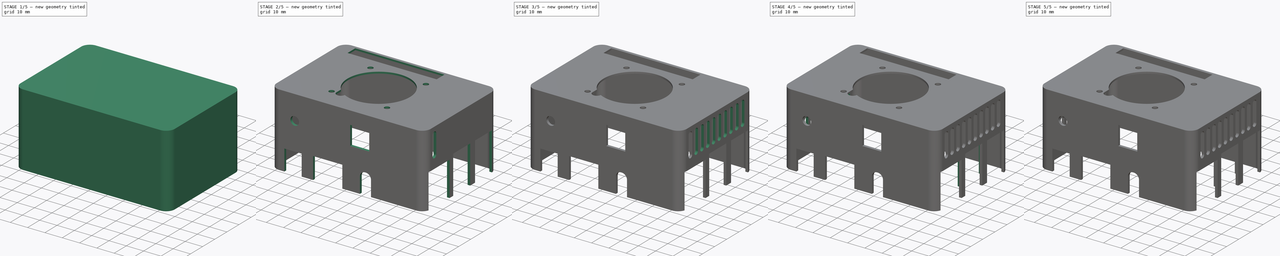
[diagram: build sequence overview — one tinted view per stage of 5, left to right]
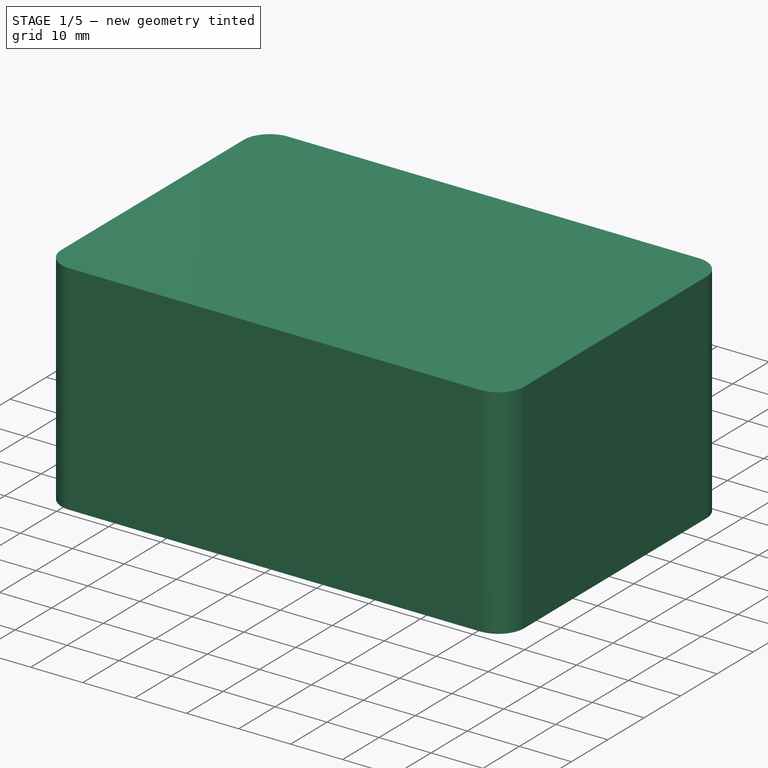
[diagram: stage 1 of 5 — iso view after this stage's code; geometry added in this stage tinted green]
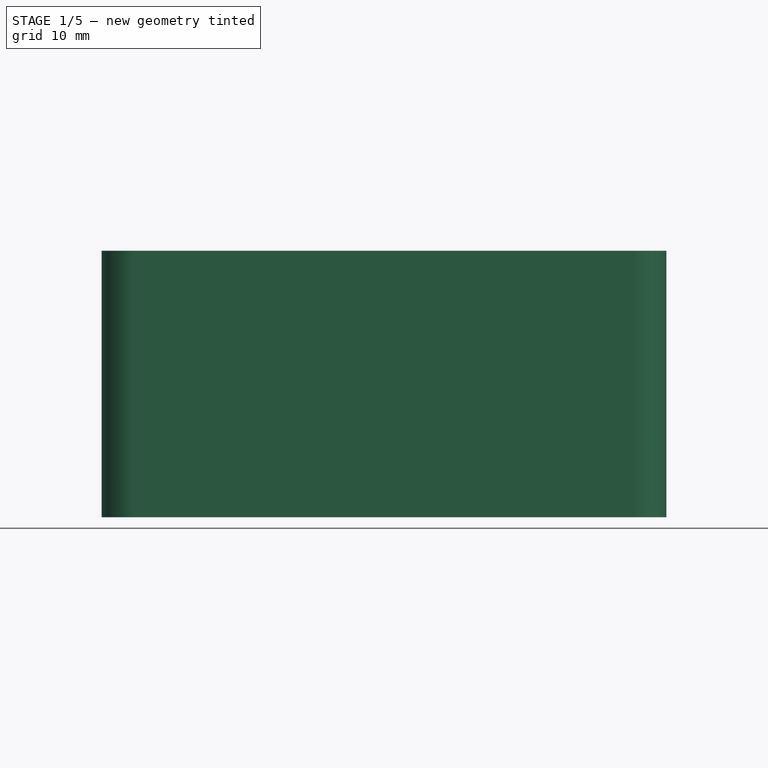
[diagram: stage 1 of 5 — front view after this stage's code; geometry added in this stage tinted green]
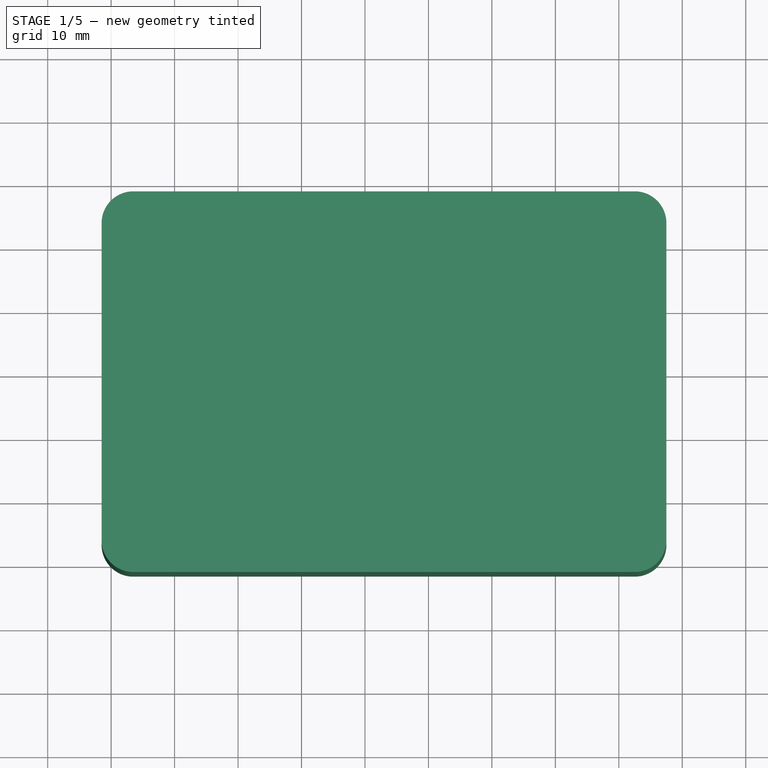
[diagram: stage 1 of 5 — top view after this stage's code; geometry added in this stage tinted green]
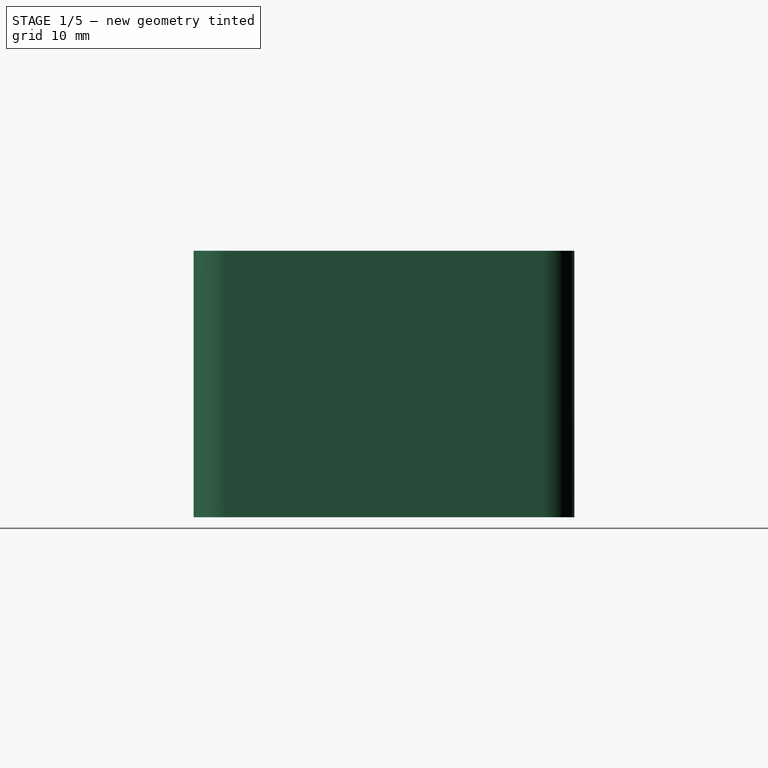
[diagram: stage 1 of 5 — right view after this stage's code; geometry added in this stage tinted green]
FCSTD DOCUMENT  (FreeCAD 0.19R17360 (Git))
Label: nanopiM4_SATA_cover
Comment: <email>\n
License: CreativeCommons Attribution-NonCommercial-ShareAlike
LicenseURL: http://creativecommons.org/licenses/by-nc-sa/4.0/
objects: Sketcher::SketchObject×11, PartDesign::Pocket×8, Part::Feature×5, PartDesign::Pad×3, PartDesign::LinearPattern×3, Part::Part2DObjectPython×2, PartDesign::Chamfer×2, PartDesign::Fillet×1, App::DocumentObjectGroup×1, PartDesign::Body×1
note: 47 computed .brp shape members not serialized (recipe doc carries the construction recipe); baked Part::Feature solids carry a one-line shape summary decoded from their .brp

FEATURE [Part::Feature] BG_OUTLINE
  Placement = pos=(0,0,1) rot=(0,0,1;0rad)
  shape: bbox 84.66 x 55.77 x 2e-07 mm, 0 faces, 0 solids (baked)
FEATURE [Part::Feature] PG_SILKSCREEN_TOP
  Placement = pos=(0,0,52) rot=(0,0,1;0rad)
  shape: bbox 82.86 x 58.79 x 2e-07 mm, 0 faces, 0 solids (baked)
FEATURE [Part::Feature] PG_SOLDERMASK_TOP
  shape: bbox 63.74 x 54.78 x 2e-07 mm, 0 faces, 0 solids (baked)
FEATURE [Sketcher::SketchObject] Sketch  label="Sketch-outer_shape"
  MapMode = 5
  Support = -> [XY_Plane]
  sketch-geometry (4):
    g0: LineSegment StartX=-1.5 StartY=-1.5 StartZ=0 EndX=87.5 EndY=-1.5 EndZ=0
    g1: LineSegment StartX=87.5 StartY=-1.5 StartZ=0 EndX=87.5 EndY=58.5 EndZ=0
    g2: LineSegment StartX=87.5 StartY=58.5 StartZ=0 EndX=-1.5 EndY=58.5 EndZ=0
    g3: LineSegment StartX=-1.5 StartY=58.5 StartZ=0 EndX=-1.5 EndY=-1.5 EndZ=0
  constraints (12):
    c: Coincident(g0,g1)
    c: Coincident(g1,g2)
    c: Coincident(g2,g3)
    c: Coincident(g3,g0)
    c: Horizontal(g0)
    c: Horizontal(g2)
    c: Vertical(g1)
    c: Vertical(g3)
    c: DistanceY(g-1,g0) = -1.5
    c: DistanceY(g3,g3) = 60
    c: DistanceX(g-1,g0) = -1.5
    c: DistanceX(g2,g2) = 89
FEATURE [PartDesign::Pad] Pad  label="outer_shape"
  Length = 42
  Length2 = 100
  Profile = -> Sketch
  Type = 0
FEATURE [PartDesign::Fillet] Fillet
  Base = -> Pad [Edge1,Edge2,Edge5,Edge8]
  BaseFeature = -> Pad
  Radius = 5
FEATURE [Sketcher::SketchObject] Sketch002  label="Sketch-connectors_right"
  MapMode = 5
  Placement = pos=(88.5,0,0) rot=(0.57735,0.57735,0.57735;2.0944rad)
  sketch-geometry (12):
    g0: LineSegment StartX=22 StartY=22 StartZ=0 EndX=36 EndY=22 EndZ=0
    g1: LineSegment StartX=36 StartY=22 StartZ=0 EndX=36 EndY=0 EndZ=0
    g2: LineSegment StartX=36 StartY=0 StartZ=0 EndX=22 EndY=0 EndZ=0
    g3: LineSegment StartX=22 StartY=0 StartZ=0 EndX=22 EndY=22 EndZ=0
    g4: LineSegment StartX=40 StartY=22 StartZ=0 EndX=54 EndY=22 EndZ=0
    g5: LineSegment StartX=54 StartY=22 StartZ=0 EndX=54 EndY=0 EndZ=0
    g6: LineSegment StartX=54 StartY=0 StartZ=0 EndX=40 EndY=0 EndZ=0
    g7: LineSegment StartX=40 StartY=0 StartZ=0 EndX=40 EndY=22 EndZ=0
    g8: LineSegment StartX=19 StartY=20 StartZ=0 EndX=2 EndY=20 EndZ=0
    g9: LineSegment StartX=2 StartY=20 StartZ=0 EndX=2 EndY=0 EndZ=0
    g10: LineSegment StartX=2 StartY=0 StartZ=0 EndX=19 EndY=0 EndZ=0
    g11: LineSegment StartX=19 StartY=0 StartZ=0 EndX=19 EndY=20 EndZ=0
  constraints (36):
    c: Coincident(g0,g1)
    c: Coincident(g1,g2)
    c: Coincident(g2,g3)
    c: Coincident(g3,g0)
    c: Horizontal(g0)
    c: Horizontal(g2)
    c: Vertical(g1)
    c: Vertical(g3)
    c: Coincident(g4,g5)
    c: Coincident(g5,g6)
    c: Coincident(g6,g7)
    c: Coincident(g7,g4)
    c: Horizontal(g4)
    c: Horizontal(g6)
    c: Vertical(g5)
    c: Vertical(g7)
    c: Coincident(g8,g9)
    c: Coincident(g9,g10)
    c: Coincident(g10,g11)
    c: Coincident(g11,g8)
    c: Horizontal(g8)
    c: Horizontal(g10)
    c: Vertical(g9)
    c: Vertical(g11)
    c: DistanceY(g-1,g9) = 0
    c: DistanceY(g9,g9) = 20
    c: DistanceY(g-1,g2) = 0
    c: DistanceY(g3,g3) = 22
    c: DistanceY(g7,g7) = 22
    c: DistanceY(g-1,g6) = 0
    c: DistanceX(g8,g8) = 17
    c: DistanceX(g0,g0) = 14
    c: DistanceX(g4,g4) = 14
    c: DistanceX(g-1,g9) = 2
    c: DistanceX(g-1,g2) = 22
    c: DistanceX(g-1,g6) = 40
FEATURE [Part::Feature] PG_SILKSCREEN_TOP001  label="PG_SILKSCREEN_TOP_riight"
  Placement = pos=(87,0,91) rot=(0,1,0;1.5708rad)
  shape: bbox 2e-07 x 58.79 x 82.86 mm, 0 faces, 0 solids (baked)
FEATURE [Sketcher::SketchObject] Sketch003  label="Sketch-main_pocket"
  ExternalGeometry = -> [Fillet]
  Support = -> [Fillet]
  sketch-geometry (8):
    g0: LineSegment StartX=3.5 StartY=0 StartZ=0 EndX=82.5 EndY=0 EndZ=0
    g1: LineSegment StartX=86 StartY=3.5 StartZ=0 EndX=86 EndY=53.5 EndZ=0
    g2: LineSegment StartX=82.5 StartY=57 StartZ=0 EndX=3.5 EndY=57 EndZ=0
    g3: LineSegment StartX=-1e-16 StartY=53.5 StartZ=0 EndX=-1e-16 EndY=3.5 EndZ=0
    g4: ArcOfCircle CenterX=3.5 CenterY=53.5 CenterZ=0 NormalX=0 NormalY=0 NormalZ=1 AngleXU=0 Radius=3.5 StartAngle=1.5708 EndAngle=3.14159
    g5: ArcOfCircle CenterX=82.5 CenterY=53.5 CenterZ=0 NormalX=0 NormalY=0 NormalZ=1 AngleXU=0 Radius=3.5 StartAngle=6e-16 EndAngle=1.5708
    g6: ArcOfCircle CenterX=82.5 CenterY=3.5 CenterZ=0 NormalX=0 NormalY=0 NormalZ=1 AngleXU=0 Radius=3.5 StartAngle=4.71239 EndAngle=6.28319
    g7: ArcOfCircle CenterX=3.5 CenterY=3.5 CenterZ=0 NormalX=0 NormalY=0 NormalZ=1 AngleXU=0 Radius=3.5 StartAngle=3.14159 EndAngle=4.71239
  constraints (20):
    c: Horizontal(g0)
    c: Horizontal(g2)
    c: Vertical(g1)
    c: Vertical(g3)
    c: Tangent(g2,g4) = -1.5708
    c: Tangent(g3,g4) = -1.5708
    c: Tangent(g2,g5) = -1.5708
    c: Tangent(g1,g5) = -1.5708
    c: Tangent(g1,g6) = -1.5708
    c: Tangent(g0,g6) = -1.5708
    c: Tangent(g0,g7) = -1.5708
    c: Tangent(g3,g7) = -1.5708
    c: Radius(g4) = 3.5
    c: Equal(g4,g5)
    c: Equal(g4,g6)
    c: Equal(g4,g7)
    c: DistanceX(g-3,g3) = 1.5
    c: DistanceX(g1,g-5) = 1.5
    c: DistanceY(g-4,g0) = 1.5
    c: DistanceY(g2,g-6) = 1.5
FEATURE [PartDesign::Pocket] Pocket  label="main_pocket"
  BaseFeature = -> Fillet
  Length = 41
  Length2 = 100
  Profile = -> Sketch003
  Reversed = true
  Type = 0
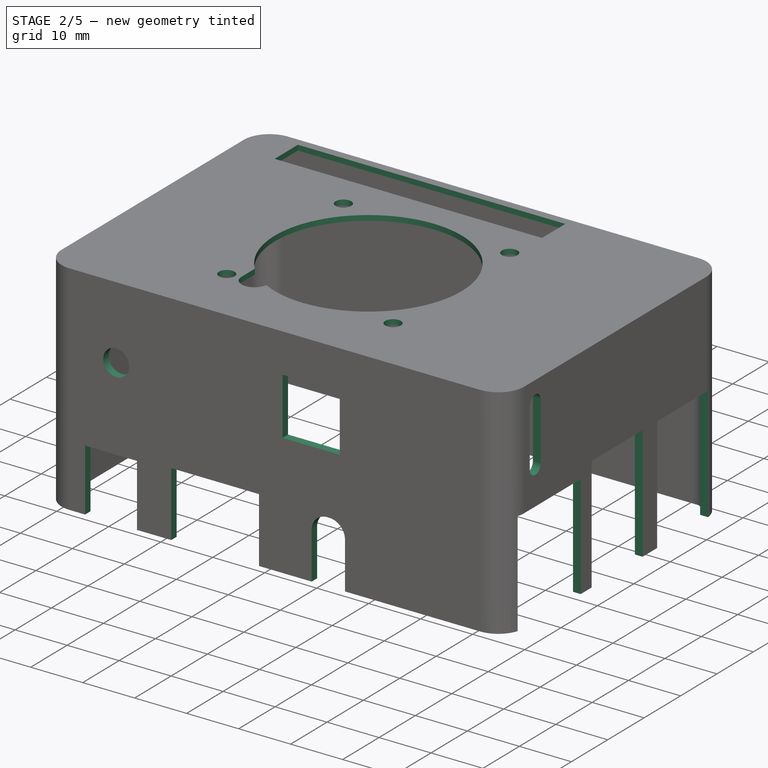
[diagram: stage 2 of 5 — iso view after this stage's code; geometry added in this stage tinted green]
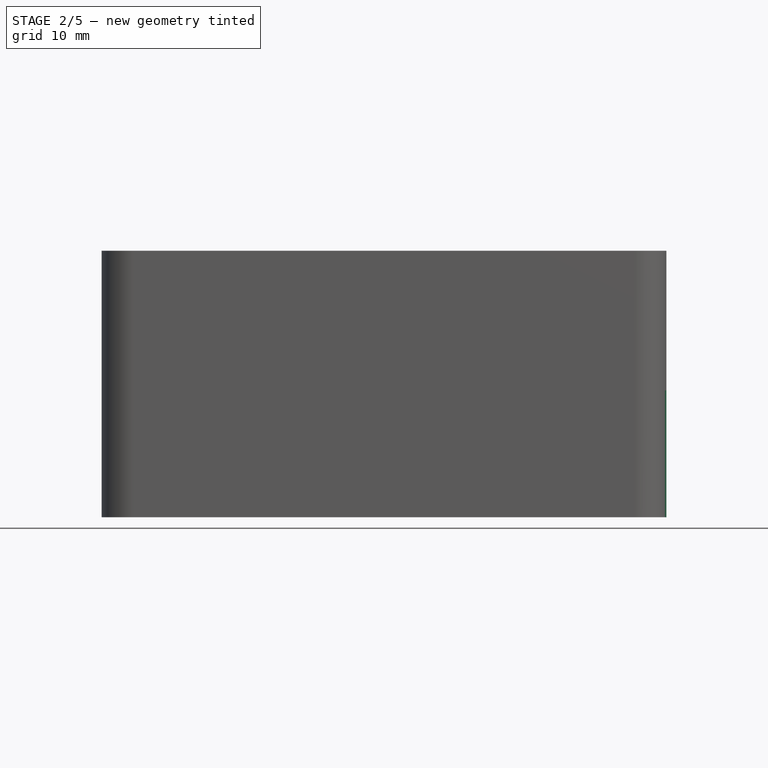
[diagram: stage 2 of 5 — front view after this stage's code; geometry added in this stage tinted green]
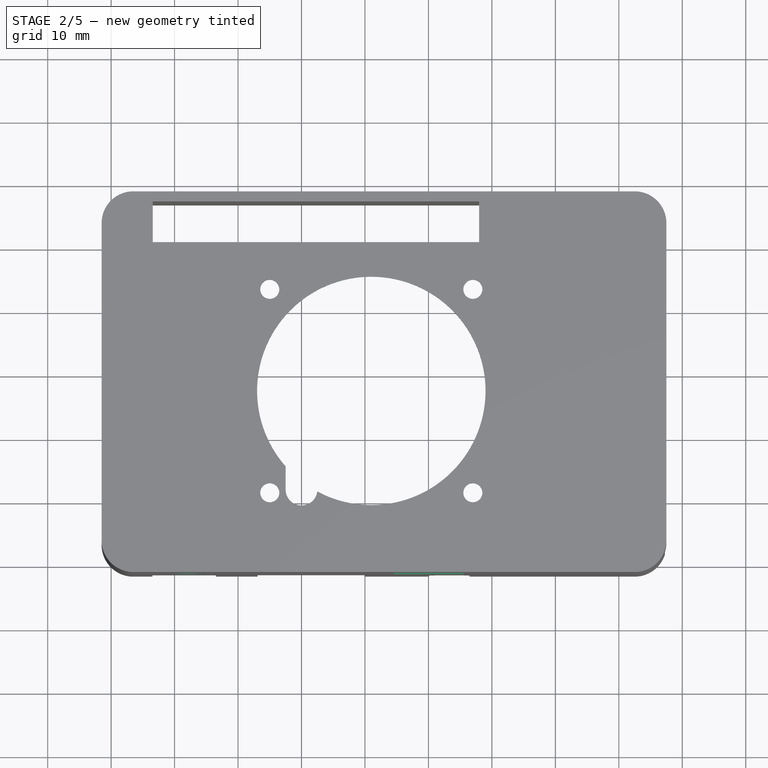
[diagram: stage 2 of 5 — top view after this stage's code; geometry added in this stage tinted green]
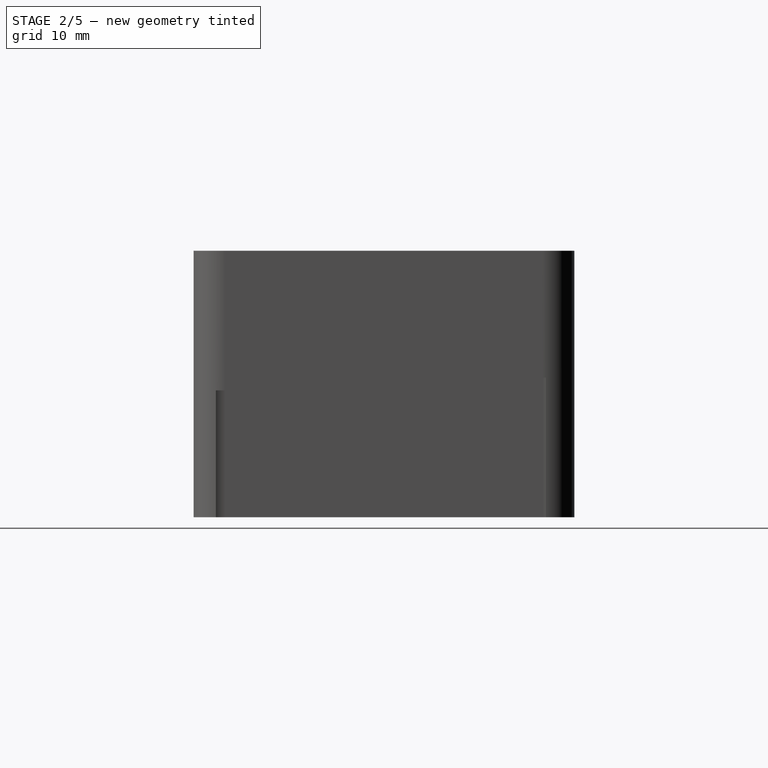
[diagram: stage 2 of 5 — right view after this stage's code; geometry added in this stage tinted green]
FEATURE [PartDesign::Pocket] Pocket001  label="connectors_right"
  BaseFeature = -> Pocket
  Length = 5
  Length2 = 100
  Profile = -> Sketch002
  Type = 0
FEATURE [Sketcher::SketchObject] Sketch004  label="Sketch-connectors_front"
  MapMode = 5
  Placement = pos=(0,-1.5,0) rot=(1,0,0;1.5708rad)
  Support = -> [Pocket001]
  sketch-geometry (19):
    g0: LineSegment StartX=6.5 StartY=0 StartZ=0 EndX=16.5 EndY=0 EndZ=0
    g1: LineSegment StartX=16.5 StartY=0 StartZ=0 EndX=16.5 EndY=12 EndZ=0
    g2: LineSegment StartX=16.5 StartY=12 StartZ=0 EndX=6.5 EndY=12 EndZ=0
    g3: LineSegment StartX=6.5 StartY=12 StartZ=0 EndX=6.5 EndY=0 EndZ=0
    g4: LineSegment StartX=53.0897 StartY=12 StartZ=0 EndX=53.4982 EndY=12 EndZ=0
    g5: LineSegment StartX=56.4982 StartY=9 StartZ=0 EndX=56.4982 EndY=0 EndZ=0
    g6: LineSegment StartX=56.4982 StartY=0 StartZ=0 EndX=50.0897 EndY=0 EndZ=0
    g7: LineSegment StartX=50.0897 StartY=0 StartZ=0 EndX=50.0897 EndY=9 EndZ=0
    g8: LineSegment StartX=23.0738 StartY=12.5 StartZ=0 EndX=39.9679 EndY=12.5 EndZ=0
    g9: LineSegment StartX=39.9679 StartY=12.5 StartZ=0 EndX=39.9679 EndY=0 EndZ=0
    g10: LineSegment StartX=39.9679 StartY=0 StartZ=0 EndX=23.0738 EndY=0 EndZ=0
    g11: LineSegment StartX=23.0738 StartY=0 StartZ=0 EndX=23.0738 EndY=12.5 EndZ=0
    g12: ArcOfCircle CenterX=53.0897 CenterY=9 CenterZ=0 NormalX=0 NormalY=0 NormalZ=1 AngleXU=0 Radius=3 StartAngle=1.5708 EndAngle=3.14159
    g13: ArcOfCircle CenterX=53.4982 CenterY=9 CenterZ=0 NormalX=0 NormalY=0 NormalZ=1 AngleXU=0 Radius=3 StartAngle=4.79e-14 EndAngle=1.5708
    g14: LineSegment StartX=44.5 StartY=34.5 StartZ=0 EndX=55.5 EndY=34.5 EndZ=0
    g15: LineSegment StartX=55.5 StartY=34.5 StartZ=0 EndX=55.5 EndY=23.5 EndZ=0
    g16: LineSegment StartX=55.5 StartY=23.5 StartZ=0 EndX=44.5 EndY=23.5 EndZ=0
    g17: LineSegment StartX=44.5 StartY=23.5 StartZ=0 EndX=44.5 EndY=34.5 EndZ=0
    g18: Circle CenterX=12.5 CenterY=28 CenterZ=0 NormalX=0 NormalY=0 NormalZ=1 AngleXU=0 Radius=2.5
  constraints (51):
    c: Coincident(g0,g1)
    c: Coincident(g1,g2)
    c: Coincident(g2,g3)
    c: Coincident(g3,g0)
    c: Horizontal(g0)
    c: Horizontal(g2)
    c: Vertical(g1)
    c: Vertical(g3)
    c: Coincident(g5,g6)
    c: Coincident(g6,g7)
    c: Horizontal(g4)
    c: Horizontal(g6)
    c: Vertical(g5)
    c: Vertical(g7)
    c: Coincident(g8,g9)
    c: Coincident(g9,g10)
    c: Coincident(g10,g11)
    c: Coincident(g11,g8)
    c: Horizontal(g8)
    c: Horizontal(g10)
    c: Vertical(g9)
    c: Vertical(g11)
    c: DistanceY(g10,g-1) = 0
    c: DistanceY(g-1,g0) = 0
    c: DistanceY(g6,g-1) = 0
    c: DistanceX(g-1,g0) = 6.5
    c: DistanceX(g2,g2) = 10
    c: DistanceY(g1,g1) = 12
    c: DistanceY(g9,g9) = 12.5
    c: Tangent(g7,g12) = 1.5708
    c: Tangent(g4,g12) = 1.5708
    c: Tangent(g4,g13) = 1.5708
    c: Tangent(g5,g13) = 1.5708
    c: Radius(g13) = 3
    c: Equal(g13,g12)
    c: DistanceY(g6,g4) = 12
    c: Coincident(g14,g15)
    c: Coincident(g15,g16)
    c: Coincident(g16,g17)
    c: Coincident(g17,g14)
    c: Horizontal(g14)
    c: Horizontal(g16)
    c: Vertical(g15)
    c: Vertical(g17)
    c: DistanceX(g14,g14) = 11
    c: DistanceX(g-1,g14) = 44.5
    c: DistanceY(g-1,g16) = 23.5
    c: DistanceY(g17,g17) = 11
    c: DistanceY(g-1,g18) = 28
    c: DistanceX(g-1,g18) = 12.5
    c: Radius(g18) = 2.5
FEATURE [PartDesign::Pocket] Pocket002  label="connectors_front"
  BaseFeature = -> Pocket001
  Length = 5
  Length2 = 100
  Profile = -> Sketch004
  Type = 0
FEATURE [Sketcher::SketchObject] Sketch005  label="Sketch-holes_top"
  ExternalGeometry = -> [Pocket002]
  MapMode = 5
  Placement = pos=(0,0,42) rot=(0,0,1;0rad)
  Support = -> [Pocket002]
  sketch-geometry (11):
    g0: LineSegment StartX=6.55495 StartY=56.9 StartZ=0 EndX=57.9937 EndY=56.9 EndZ=0
    g1: LineSegment StartX=57.9937 StartY=56.9 StartZ=0 EndX=57.9937 EndY=50.5 EndZ=0
    g2: LineSegment StartX=57.9937 StartY=50.5 StartZ=0 EndX=6.55495 EndY=50.5 EndZ=0
    g3: LineSegment StartX=6.55495 StartY=50.5 StartZ=0 EndX=6.55495 EndY=56.9 EndZ=0
    g4: ArcOfCircle CenterX=41 CenterY=27.0574 CenterZ=0 NormalX=0 NormalY=0 NormalZ=1 AngleXU=0 Radius=18 StartAngle=4.21942 EndAngle=10.1475
    g5: Circle CenterX=56.9997 CenterY=43.0574 CenterZ=0 NormalX=0 NormalY=0 NormalZ=1 AngleXU=0 Radius=1.5
    g6: Circle CenterX=25 CenterY=43.0574 CenterZ=0 NormalX=0 NormalY=0 NormalZ=1 AngleXU=0 Radius=1.5
    g7: Circle CenterX=24.9997 CenterY=11 CenterZ=0 NormalX=0 NormalY=0 NormalZ=1 AngleXU=0 Radius=1.5
    g8: Circle CenterX=56.9997 CenterY=11 CenterZ=0 NormalX=0 NormalY=0 NormalZ=1 AngleXU=0 Radius=1.5
    g9: ArcOfCircle CenterX=29.9997 CenterY=11.5 CenterZ=0 NormalX=0 NormalY=0 NormalZ=1 AngleXU=0 Radius=2.5 StartAngle=3.14151 EndAngle=6.16312
    g10: LineSegment StartX=27.4997 StartY=11.5002 StartZ=0 EndX=27.5 EndY=15.1515 EndZ=0
  constraints (29):
    c: Coincident(g0,g1)
    c: Coincident(g1,g2)
    c: Coincident(g2,g3)
    c: Coincident(g3,g0)
    c: Horizontal(g0)
    c: Horizontal(g2)
    c: Vertical(g1)
    c: Vertical(g3)
    c: Radius(g4) = 18
    c: Radius(g5) = 1.5
    c: Equal(g5,g6)
    c: Equal(g5,g7)
    c: Equal(g5,g8)
    c: DistanceX(g6,g4) = 16
    c: DistanceY(g0,g-3) = 0.1
    c: DistanceY(g3,g3) = 6.4
    c: Tangent(g9,g10) = 1.5708
    c: Radius(g9) = 2.5
    c: DistanceX(g-1,g4) = 41
    c: DistanceX(g7,g9) = 5
    c: Coincident(g4,g9)
    c: Coincident(g4,g10)
    c: DistanceY(g-1,g7) = 11
    c: DistanceY(g7,g8) = 0
    c: DistanceY(g6,g5) = 0
    c: DistanceX(g7,g8) = 32
    c: DistanceX(g8,g5) = 0
    c: DistanceY(g4,g6) = 16
    c: DistanceY(g7,g9) = 0.5
FEATURE [Part::Part2DObjectPython] Rectangle  label="sata_heat_sink"  # Draft 2D object (typed FeaturePython)
  Area = 0
  ChamferSize = 0
  Columns = 1
  FilletRadius = 0
  Height = 26
  Length = 30
  MakeFace = false
  Placement = pos=(26,15,42) rot=(0,0,1;0rad)
  Rows = 1
FEATURE [PartDesign::Pocket] Pocket003  label="holes_top"
  BaseFeature = -> Pocket002
  Length = 5
  Length2 = 100
  Profile = -> Sketch005
  Type = 0
FEATURE [Sketcher::SketchObject] Sketch006  label="Sketch-vent_right"
  MapMode = 5
  Placement = pos=(87.5,0,0) rot=(0.57735,0.57735,0.57735;2.0944rad)
  Support = -> [Pocket003]
  sketch-geometry (4):
    g0: ArcOfCircle CenterX=6.5 CenterY=38 CenterZ=0 NormalX=0 NormalY=0 NormalZ=1 AngleXU=0 Radius=1.5 StartAngle=6.5091e-12 EndAngle=3.14159
    g1: ArcOfCircle CenterX=6.5 CenterY=27 CenterZ=0 NormalX=0 NormalY=0 NormalZ=1 AngleXU=0 Radius=1.5 StartAngle=3.14159 EndAngle=6.28319
    g2: LineSegment StartX=5 StartY=38 StartZ=0 EndX=5 EndY=27 EndZ=0
    g3: LineSegment StartX=8 StartY=38 StartZ=0 EndX=8 EndY=27 EndZ=0
  constraints (10):
    c: Tangent(g0,g3) = 1.5708
    c: Tangent(g0,g2) = -1.5708
    c: Tangent(g2,g1) = -1.5708
    c: Tangent(g3,g1) = 1.5708
    c: Vertical(g2)
    c: Equal(g0,g1)
    c: DistanceY(g2,g2) = 11
    c: Radius(g0) = 1.5
    c: DistanceX(g-1,g1) = 5
    c: DistanceY(g-1,g1) = 27
FEATURE [PartDesign::Pocket] Pocket004  label="vent_right"
  BaseFeature = -> Pocket003
  Length = 5
  Length2 = 100
  Profile = -> Sketch006
  Type = 0
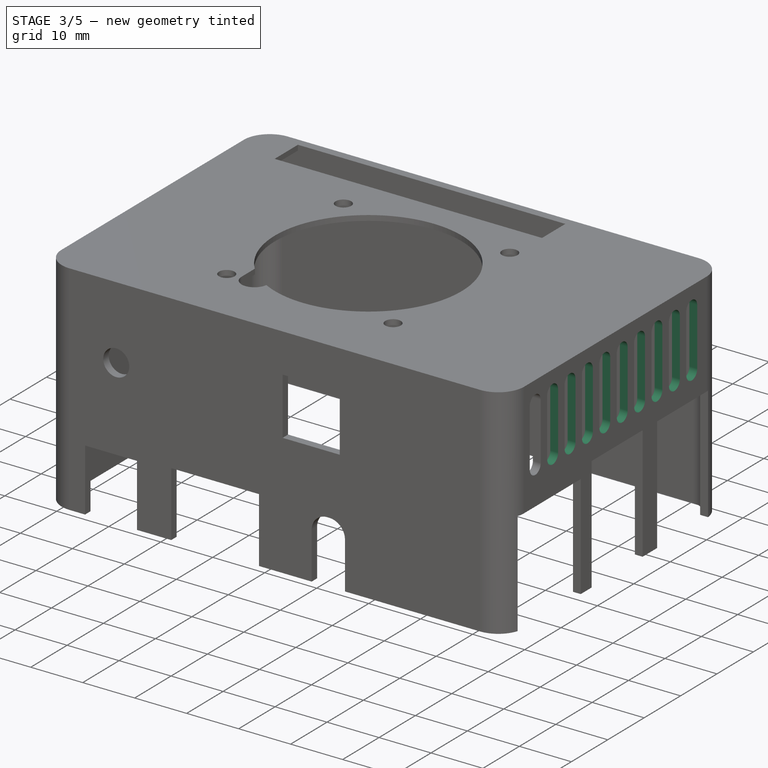
[diagram: stage 3 of 5 — iso view after this stage's code; geometry added in this stage tinted green]
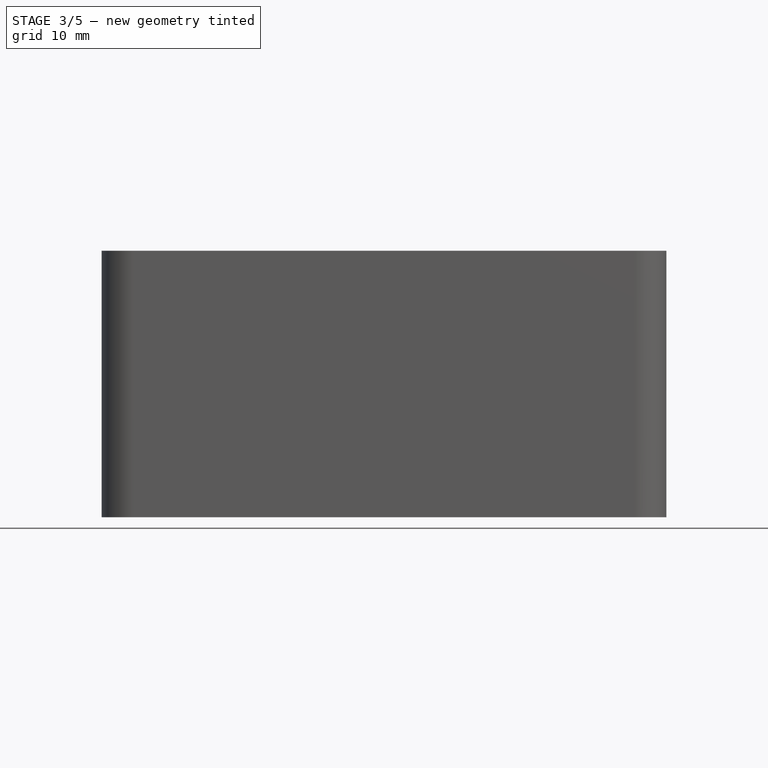
[diagram: stage 3 of 5 — front view after this stage's code; geometry added in this stage tinted green]
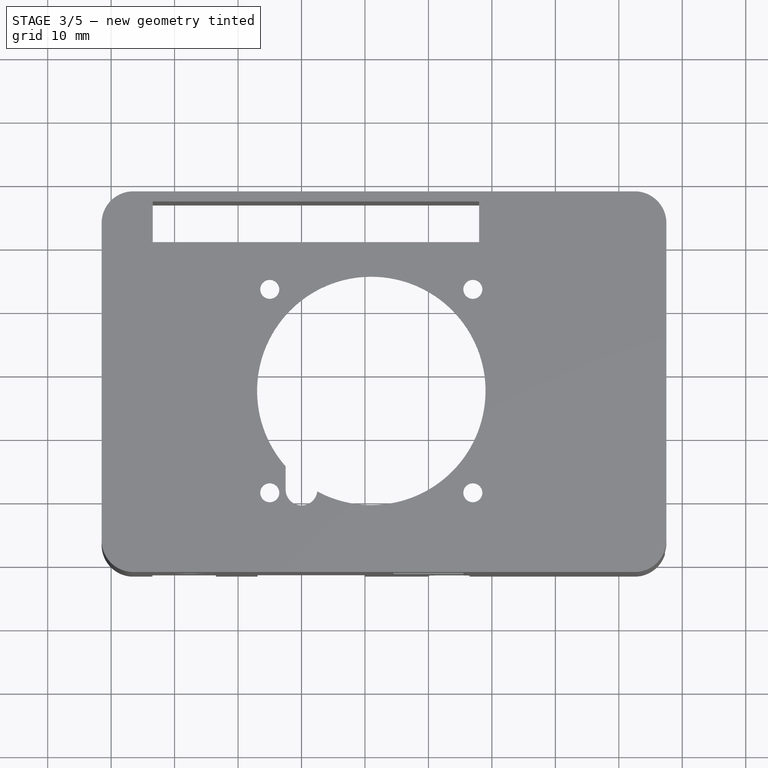
[diagram: stage 3 of 5 — top view after this stage's code; geometry added in this stage tinted green]
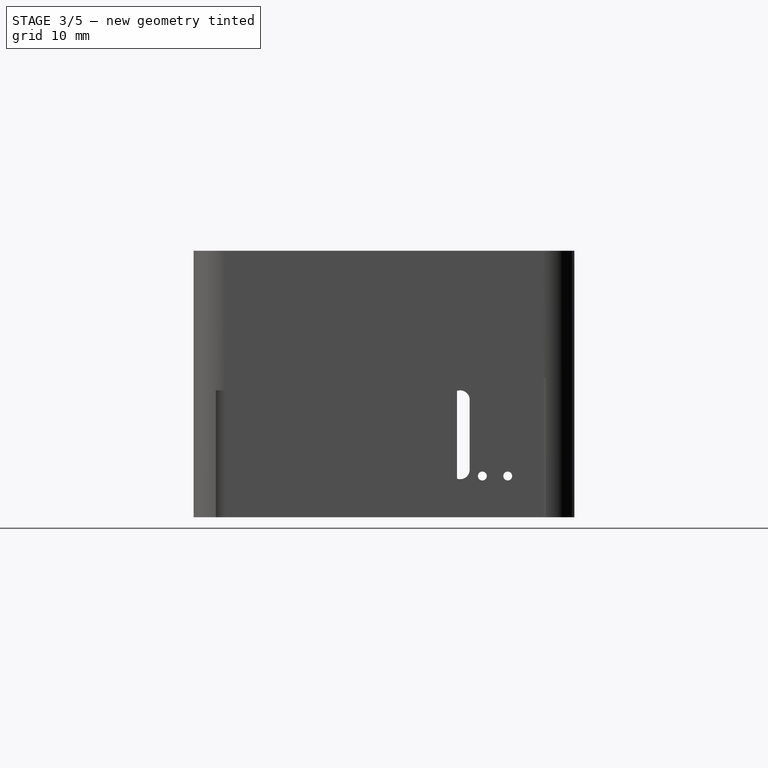
[diagram: stage 3 of 5 — right view after this stage's code; geometry added in this stage tinted green]
FEATURE [PartDesign::LinearPattern] LinearPattern  label="vents_right"
  BaseFeature = -> Pocket004
  Direction = -> Y_Axis
  Length = 43
  Occurrences = 10
  Originals = -> [Pocket004]
FEATURE [Sketcher::SketchObject] Sketch007  label="Sketch-statuslights"
  MapMode = 5
  Placement = pos=(-1.5,0,0) rot=(0.57735,-0.57735,-0.57735;2.0944rad)
  Support = -> [LinearPattern]
  sketch-geometry (2):
    g0: Circle CenterX=-48 CenterY=6.5 CenterZ=0 NormalX=0 NormalY=0 NormalZ=1 AngleXU=0 Radius=0.7
    g1: Circle CenterX=-44 CenterY=6.5 CenterZ=0 NormalX=0 NormalY=0 NormalZ=1 AngleXU=0 Radius=0.7
  constraints (6):
    c: DistanceX(g1,g-1) = 44
    c: DistanceX(g0,g-1) = 48
    c: Radius(g1) = 0.7
    c: Equal(g1,g0)
    c: DistanceY(g0,g1) = 0
    c: DistanceY(g-1,g0) = 6.5
FEATURE [PartDesign::Pocket] Pocket005  label="statuslights"
  BaseFeature = -> LinearPattern
  Length = 5
  Length2 = 100
  Profile = -> Sketch007
  Type = 0
FEATURE [Sketcher::SketchObject] Sketch008  label="Sketch-vent_left"
  MapMode = 5
  Placement = pos=(-1.5,0,0) rot=(0.57735,-0.57735,-0.57735;2.0944rad)
  Support = -> [Pocket005]
  sketch-geometry (4):
    g0: ArcOfCircle CenterX=-40.5 CenterY=18.5 CenterZ=0 NormalX=0 NormalY=0 NormalZ=1 AngleXU=0 Radius=1.5 StartAngle=-9e-16 EndAngle=3.14159
    g1: ArcOfCircle CenterX=-40.5 CenterY=7.5 CenterZ=0 NormalX=0 NormalY=0 NormalZ=1 AngleXU=0 Radius=1.5 StartAngle=3.14159 EndAngle=6.28319
    g2: LineSegment StartX=-42 StartY=18.5 StartZ=0 EndX=-42 EndY=7.5 EndZ=0
    g3: LineSegment StartX=-39 StartY=18.5 StartZ=0 EndX=-39 EndY=7.5 EndZ=0
  constraints (10):
    c: Tangent(g0,g3) = 1.5708
    c: Tangent(g0,g2) = -1.5708
    c: Tangent(g2,g1) = -1.5708
    c: Tangent(g3,g1) = 1.5708
    c: Vertical(g2)
    c: Equal(g0,g1)
    c: Radius(g0) = 1.5
    c: DistanceY(g2,g2) = 11
    c: DistanceX(g1,g-1) = 42
    c: DistanceY(g-1,g0) = 18.5
FEATURE [PartDesign::Pocket] Pocket006  label="vent_left"
  BaseFeature = -> Pocket005
  Length = 5
  Length2 = 100
  Profile = -> Sketch008
  Type = 0
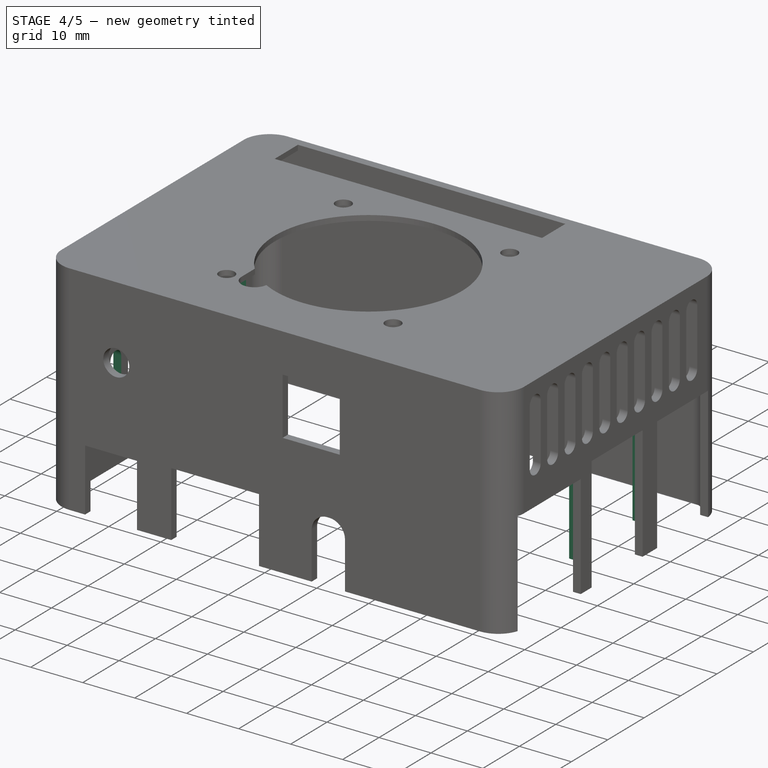
[diagram: stage 4 of 5 — iso view after this stage's code; geometry added in this stage tinted green]
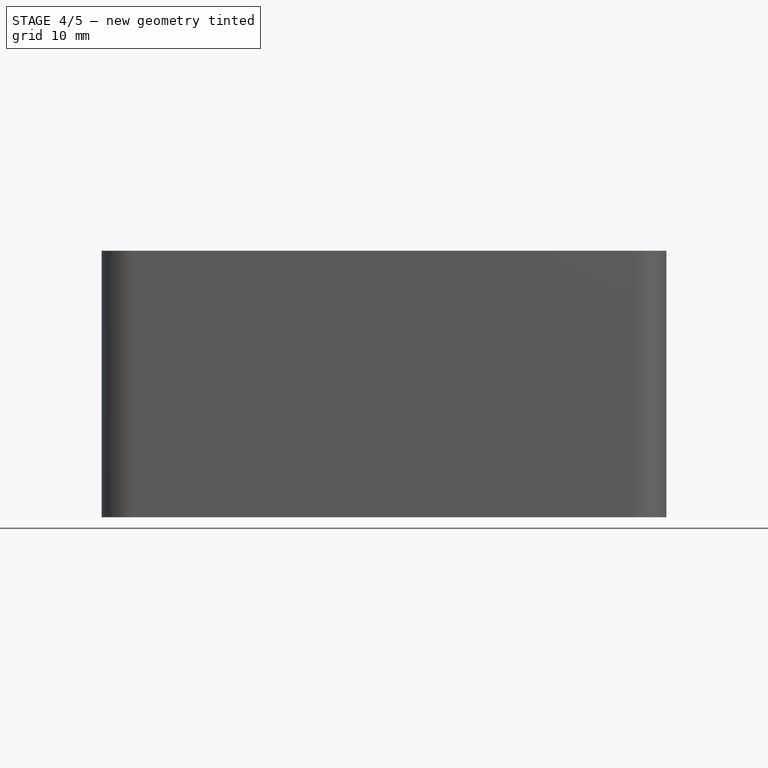
[diagram: stage 4 of 5 — front view after this stage's code; geometry added in this stage tinted green]
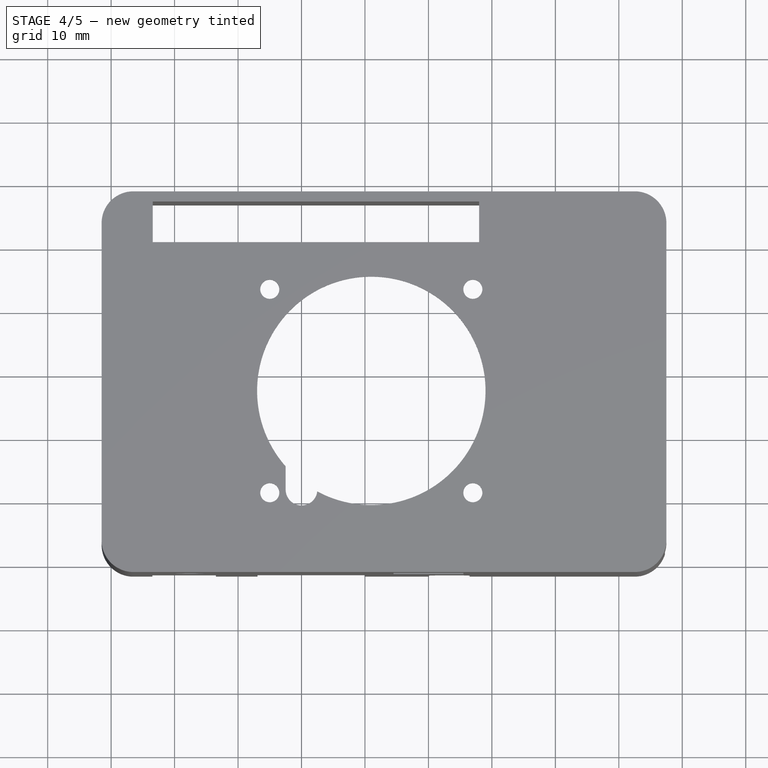
[diagram: stage 4 of 5 — top view after this stage's code; geometry added in this stage tinted green]
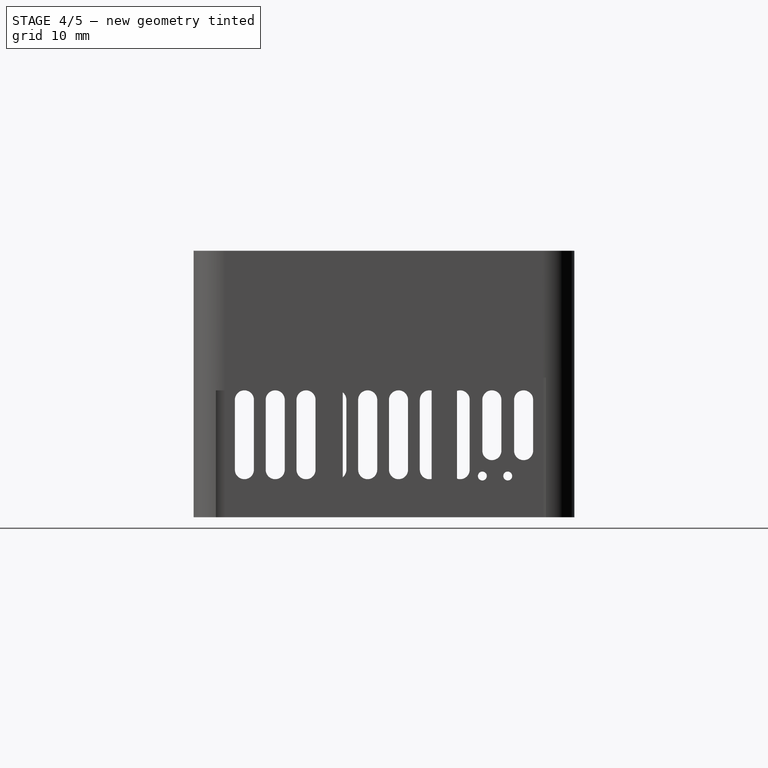
[diagram: stage 4 of 5 — right view after this stage's code; geometry added in this stage tinted green]
FEATURE [PartDesign::LinearPattern] LinearPattern001  label="vents_left"
  BaseFeature = -> Pocket006
  Direction = -> Sketch008 [H_Axis]
  Length = 34
  Occurrences = 8
  Originals = -> [Pocket006]
FEATURE [Part::Part2DObjectPython] Rectangle001  label="nanoti M4 boardgap"  # Draft 2D object (typed FeaturePython)
  Area = 0
  ChamferSize = 0
  Columns = 1
  FilletRadius = 0
  Height = 16
  Length = 56
  MakeFace = false
  Placement = pos=(-1.5,56,5) rot=(0.57735,-0.57735,-0.57735;2.0944rad)
  Rows = 1
FEATURE [Sketcher::SketchObject] Sketch009  label="Sketch-vent_left001"
  MapMode = 5
  Placement = pos=(-1.5,0,0) rot=(0.57735,-0.57735,-0.57735;2.0944rad)
  Support = -> [Pocket005]
  sketch-geometry (4):
    g0: ArcOfCircle CenterX=-45.5 CenterY=18.5 CenterZ=0 NormalX=0 NormalY=0 NormalZ=1 AngleXU=0 Radius=1.5 StartAngle=4e-16 EndAngle=3.14159
    g1: ArcOfCircle CenterX=-45.5 CenterY=10.5 CenterZ=0 NormalX=0 NormalY=0 NormalZ=1 AngleXU=0 Radius=1.5 StartAngle=3.14159 EndAngle=6.28319
    g2: LineSegment StartX=-47 StartY=18.5 StartZ=0 EndX=-47 EndY=10.5 EndZ=0
    g3: LineSegment StartX=-44 StartY=18.5 StartZ=0 EndX=-44 EndY=10.5 EndZ=0
  constraints (10):
    c: Tangent(g0,g3) = 1.5708
    c: Tangent(g0,g2) = -1.5708
    c: Tangent(g2,g1) = -1.5708
    c: Tangent(g3,g1) = 1.5708
    c: Vertical(g2)
    c: Equal(g0,g1)
    c: Radius(g0) = 1.5
    c: DistanceY(g2,g2) = 8
    c: DistanceX(g1,g-1) = 47
    c: DistanceY(g-1,g0) = 18.5
FEATURE [PartDesign::Pocket] Pocket007  label="vent_left_sml"
  BaseFeature = -> LinearPattern001
  Length = 5
  Length2 = 100
  Profile = -> Sketch009
  Type = 0
FEATURE [PartDesign::LinearPattern] LinearPattern002  label="vents_left_sml"
  BaseFeature = -> Pocket007
  Direction = -> Sketch009 [H_Axis]
  Length = 5
  Occurrences = 2
  Originals = -> [Pocket007]
  Reversed = true
FEATURE [Part::Feature] PG_SILKSCREEN_TOP002  label="PG_SILKSCREEN_TOP_front"
  Placement = pos=(0,-2,3) rot=(1,0,0;1.5708rad)
  shape: bbox 82.86 x 2e-07 x 58.79 mm, 0 faces, 0 solids (baked)
FEATURE [App::DocumentObjectGroup] Group  label="M4_blueprints"
  Group = -> [PG_SILKSCREEN_TOP002,PG_SILKSCREEN_TOP001,BG_OUTLINE,PG_SILKSCREEN_TOP,PG_SOLDERMASK_TOP,Rectangle001,Rectangle]
FEATURE [Sketcher::SketchObject] Sketch010
  ExternalGeometry = -> [LinearPattern002]
  MapMode = 5
  Placement = pos=(86,0,0) rot=(0.57735,-0.57735,-0.57735;2.0944rad)
  Support = -> [LinearPattern002]
  sketch-geometry (8):
    g0: LineSegment StartX=-37.5 StartY=4.9669 StartZ=0 EndX=-37.5 EndY=24 EndZ=0
    g1: LineSegment StartX=-37.5 StartY=24 StartZ=0 EndX=-38.5 EndY=24 EndZ=0
    g2: LineSegment StartX=-38.5 StartY=24 StartZ=0 EndX=-38.5 EndY=4.9669 EndZ=0
    g3: LineSegment StartX=-20.1 StartY=4.9669 StartZ=0 EndX=-20.1 EndY=24 EndZ=0
    g4: LineSegment StartX=-20.1 StartY=24 StartZ=0 EndX=-20.9 EndY=24 EndZ=0
    g5: LineSegment StartX=-20.9 StartY=24 StartZ=0 EndX=-20.9 EndY=4.9669 EndZ=0
    g6: LineSegment StartX=-38.5 StartY=4.9669 StartZ=0 EndX=-37.5 EndY=4.9669 EndZ=0
    g7: LineSegment StartX=-20.9 StartY=4.9669 StartZ=0 EndX=-20.1 EndY=4.9669 EndZ=0
  constraints (22):
    c: Coincident(g0,g1)
    c: Coincident(g1,g2)
    c: Horizontal(g1)
    c: Vertical(g0)
    c: Vertical(g2)
    c: Coincident(g3,g4)
    c: Coincident(g4,g5)
    c: Horizontal(g4)
    c: Vertical(g3)
    c: Vertical(g5)
    c: DistanceY(g0,g4) = 0
    c: DistanceX(g-3,g1) = 1.5
    c: DistanceX(g0,g-4) = 1.5
    c: DistanceX(g-5,g4) = 1.1
    c: DistanceX(g3,g-6) = 1.1
    c: Horizontal(g6)
    c: PointOnObject(g3,g6)
    c: Coincident(g6,g2)
    c: Coincident(g6,g0)
    c: Coincident(g7,g5)
    c: Tangent(g6,g7)
    c: PointOnObject(g7,g3)
FEATURE [PartDesign::Pad] Pad001
  BaseFeature = -> LinearPattern002
  Length = 1.5
  Length2 = 100
  Profile = -> Sketch010
  Type = 0
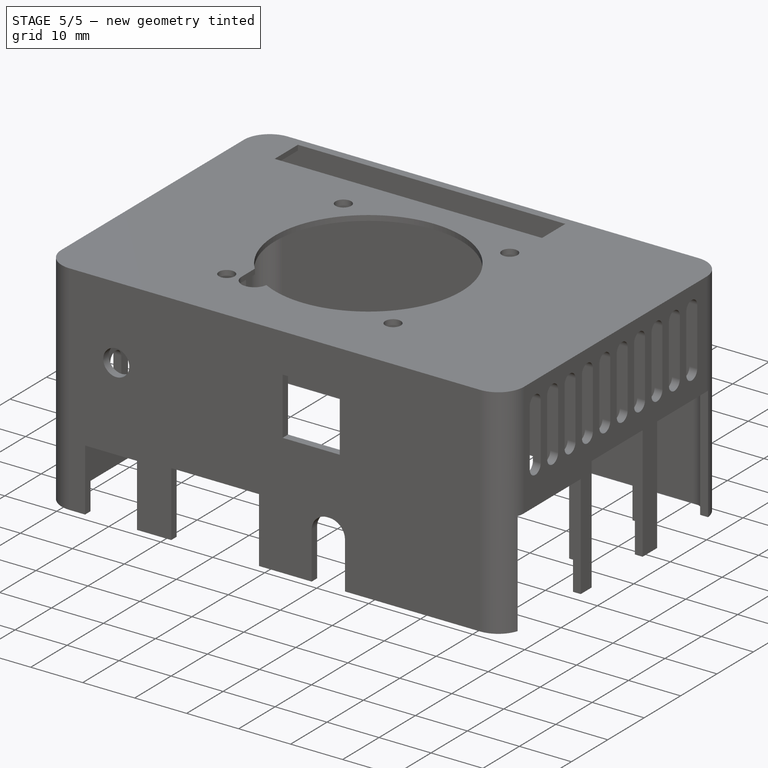
[diagram: stage 5 of 5 — iso view after this stage's code; geometry added in this stage tinted green]
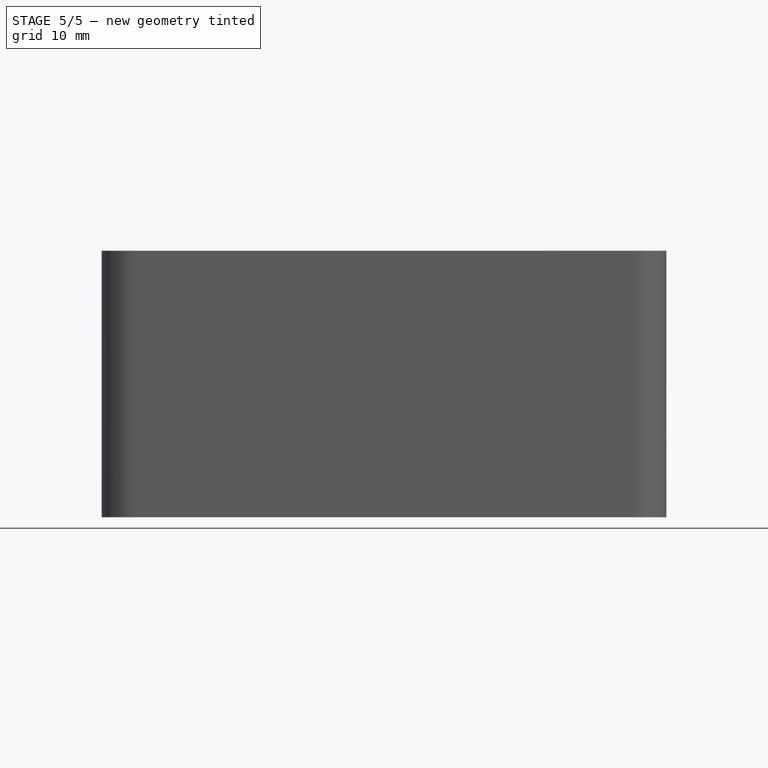
[diagram: stage 5 of 5 — front view after this stage's code; geometry added in this stage tinted green]
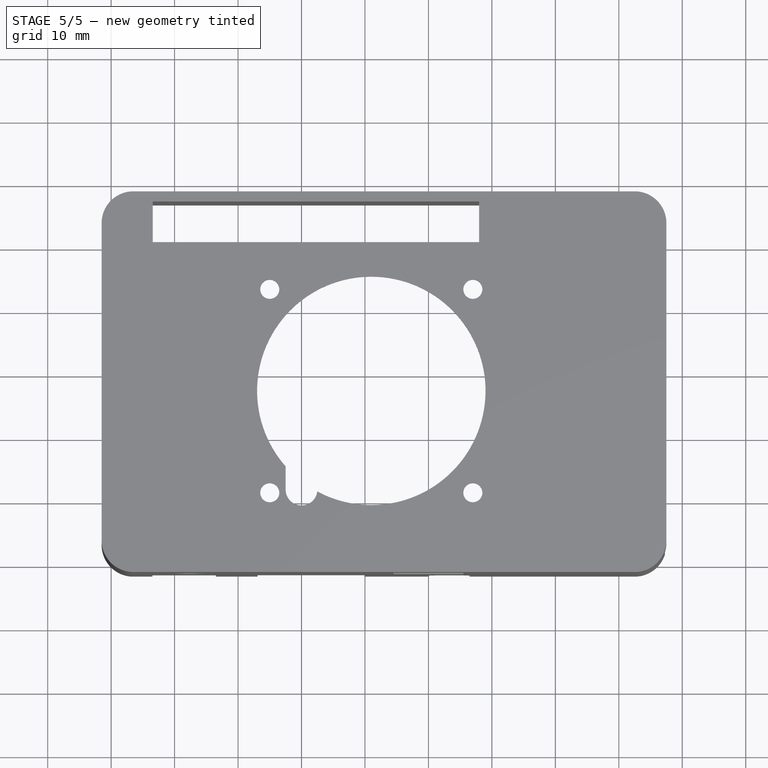
[diagram: stage 5 of 5 — top view after this stage's code; geometry added in this stage tinted green]
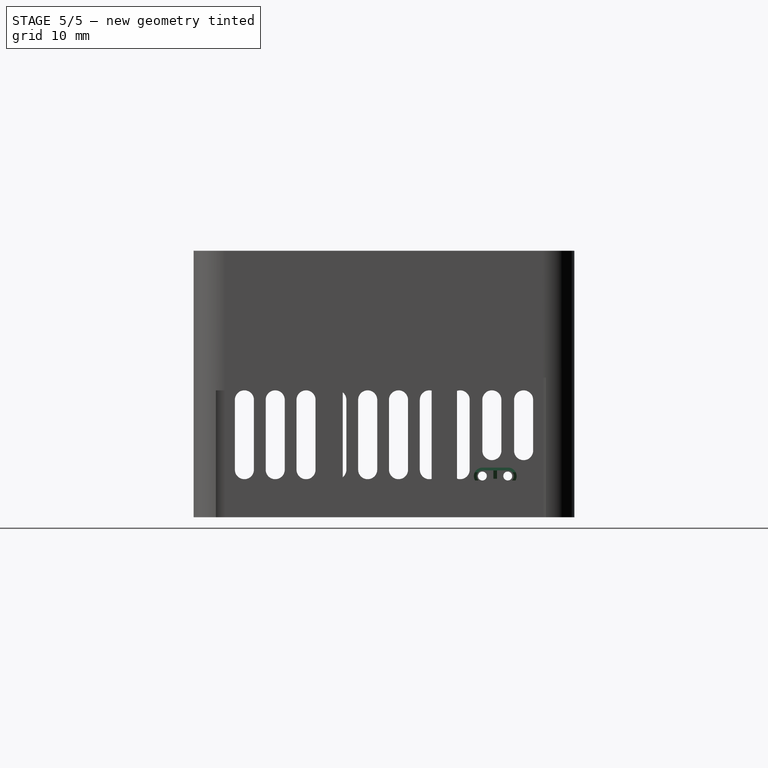
[diagram: stage 5 of 5 — right view after this stage's code; geometry added in this stage tinted green]
FEATURE [PartDesign::Chamfer] Chamfer
  Base = -> Pad001 [Edge433,Edge441]
  BaseFeature = -> Pad001
  Size = 1.3
FEATURE [Sketcher::SketchObject] Sketch011
  MapMode = 5
  Placement = pos=(0,0,0) rot=(0.57735,0.57735,0.57735;2.0944rad)
  Support = -> [Chamfer]
  sketch-geometry (12):
    g0: ArcOfCircle CenterX=44.0049 CenterY=6.48385 CenterZ=0 NormalX=0 NormalY=0 NormalZ=1 AngleXU=0 Radius=0.899179 StartAngle=1.5708 EndAngle=4.01169
    g1: ArcOfCircle CenterX=48.055 CenterY=6.48385 CenterZ=0 NormalX=0 NormalY=0 NormalZ=1 AngleXU=0 Radius=0.899179 StartAngle=5.41309 EndAngle=7.85398
    g2: LineSegment StartX=44.0049 StartY=7.38303 StartZ=0 EndX=45.7434 EndY=7.38303 EndZ=0
    g3: ArcOfCircle CenterX=44.0049 CenterY=6.48385 CenterZ=0 NormalX=0 NormalY=0 NormalZ=1 AngleXU=0 Radius=1.34212 StartAngle=1.5708 EndAngle=3.67924
    g4: ArcOfCircle CenterX=48.055 CenterY=6.48385 CenterZ=0 NormalX=0 NormalY=0 NormalZ=1 AngleXU=0 Radius=1.34212 StartAngle=5.74554 EndAngle=7.85398
    g5: LineSegment StartX=44.0049 StartY=7.82598 StartZ=0 EndX=48.055 EndY=7.82598 EndZ=0
    g6: LineSegment StartX=49.2078 StartY=5.79653 StartZ=0 EndX=48.6348 EndY=5.79653 EndZ=0
    g7: LineSegment StartX=43.4252 StartY=5.79653 StartZ=0 EndX=42.8521 EndY=5.79653 EndZ=0
    g8: LineSegment StartX=45.7434 StartY=7.38303 StartZ=0 EndX=45.7434 EndY=6.06137 EndZ=0
    g9: LineSegment StartX=45.7434 StartY=6.06137 StartZ=0 EndX=46.3165 EndY=6.06137 EndZ=0
    g10: LineSegment StartX=46.3165 StartY=6.06137 StartZ=0 EndX=46.3165 EndY=7.38303 EndZ=0
    g11: LineSegment StartX=46.3165 StartY=7.38303 StartZ=0 EndX=48.055 EndY=7.38303 EndZ=0
  constraints (28):
    c: Tangent(g0,g2) = 1.5708
    c: Coincident(g11,g1) = 1.5708
    c: Equal(g0,g1)
    c: Tangent(g3,g5) = 1.5708
    c: Tangent(g5,g4) = 1.5708
    c: Equal(g3,g4)
    c: Coincident(g3,g0)
    c: DistanceX(g1,g4) = 0
    c: Horizontal(g6)
    c: PointOnObject(g3,g6)
    c: Coincident(g6,g4)
    c: Coincident(g6,g1)
    c: Coincident(g7,g0)
    c: Tangent(g6,g7)
    c: PointOnObject(g7,g3)
    c: DistanceY(g0,g1) = 0
    c: DistanceY(g3,g4) = 0
    c: Vertical(g8)
    c: Coincident(g8,g9)
    c: Coincident(g9,g10)
    c: Vertical(g10)
    c: Horizontal(g9)
    c: Tangent(g2,g11)
    c: Coincident(g8,g2)
    c: Coincident(g10,g11)
    c: Equal(g2,g11)
    c: Equal(g7,g9)
    c: Equal(g9,g6)
FEATURE [PartDesign::Pad] Pad002
  BaseFeature = -> Chamfer
  Length = 1.5
  Length2 = 100
  Profile = -> Sketch011
  Type = 0
FEATURE [PartDesign::Chamfer] Chamfer001
  Base = -> Pad002 [Edge426,Edge418,Edge434]
  BaseFeature = -> Pad002
  Size = 1.3
FEATURE [PartDesign::Body] Body
  Group = -> [Sketch,Pad,Fillet,Sketch002,Sketch003,Pocket,Pocket001,Sketch004,Pocket002,Sketch005,Pocket003,Sketch006,Pocket004,LinearPattern,Sketch007,Pocket005,Sketch008,Pocket006,LinearPattern001,Sketch009,Pocket007,LinearPattern002,Sketch010,Pad001,Chamfer,Sketch011,Pad002,Chamfer001]
  Origin = -> Origin
  Tip = -> Chamfer001
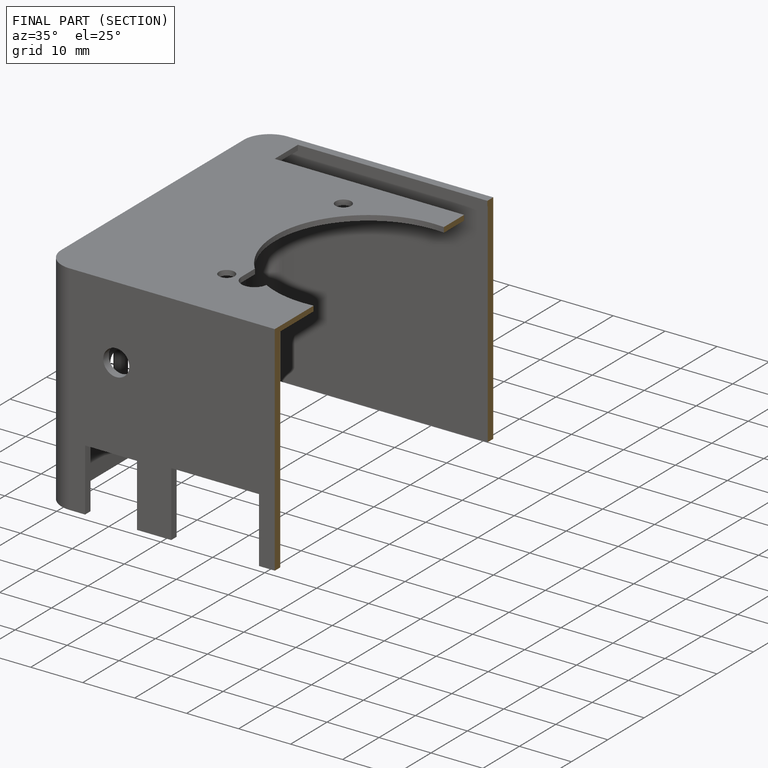
[diagram: finished part — half-section view (interior)]
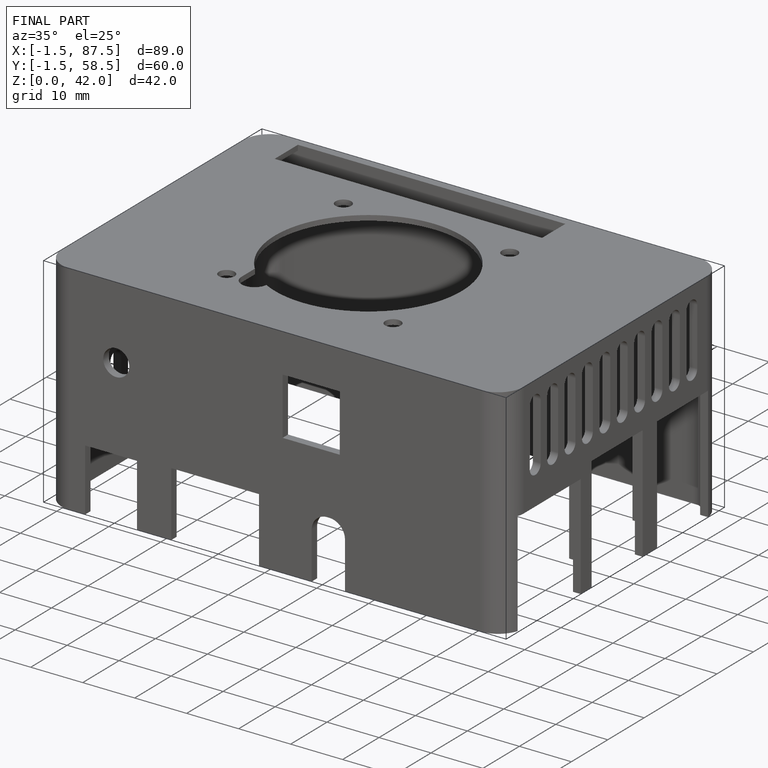
[diagram: finished part — iso view with bounding-box wireframe]
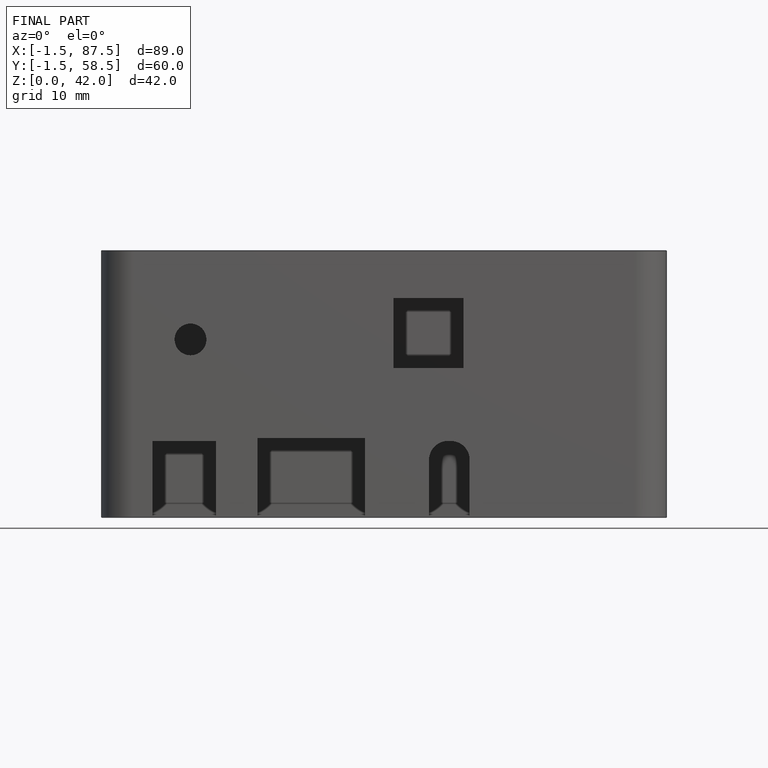
[diagram: finished part — front view with bounding-box wireframe]
